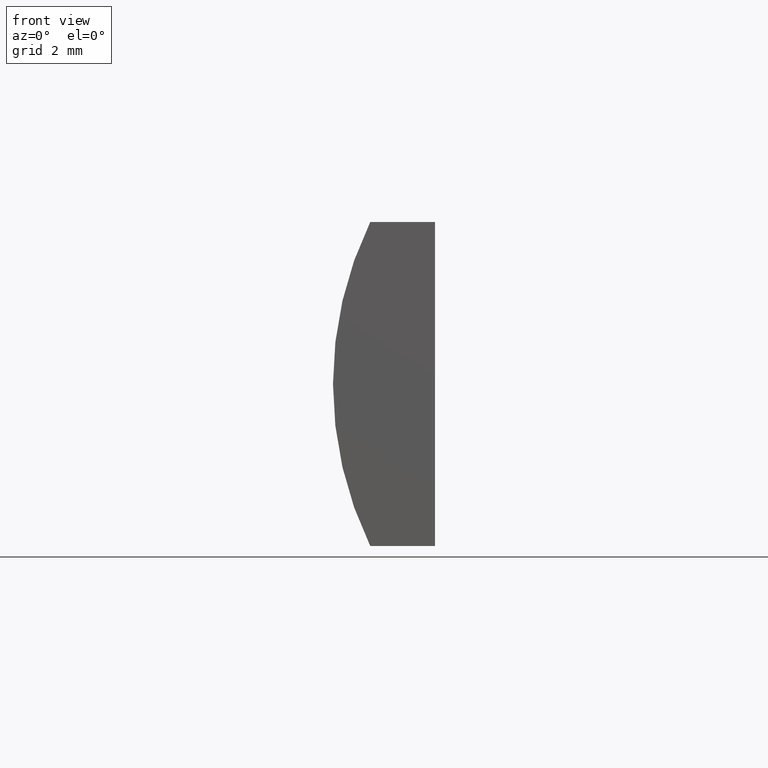
[diagram: clean part render]
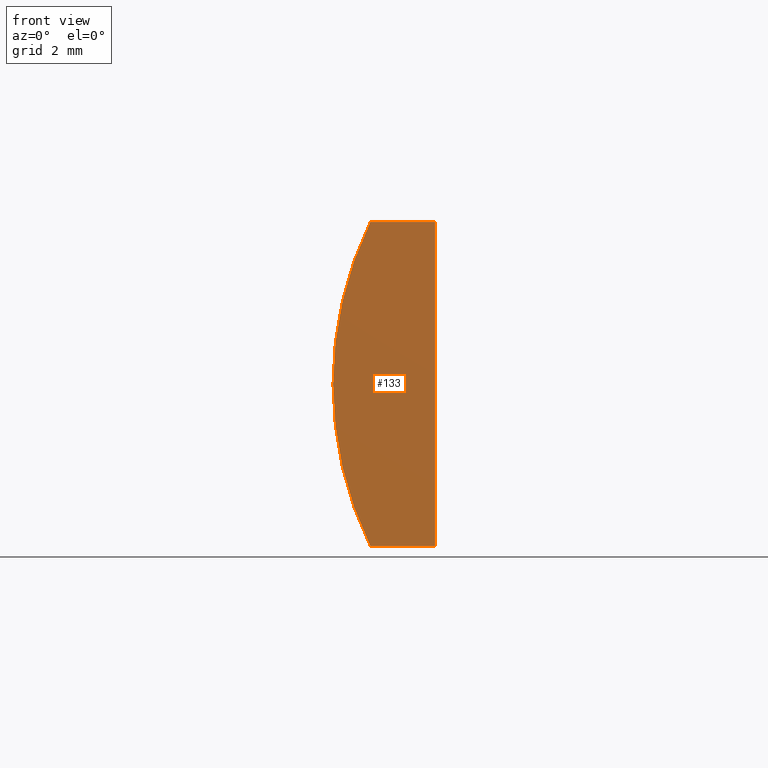
[diagram: same view with one face highlighted and labeled with its STEP entity id]
A machine part, front view. The second image highlights one B-rep face of the part: STEP entity #133.
In plain terms, the highlighted planar face has unit normal (0, 1, 0).
Its self-contained STEP definition (entity closure, byte-faithful):
#14 = CARTESIAN_POINT ( 'NONE',  ( -5.945402443392432600, 0.0000000000000000000, -5.000000000000000000 ) ) ;
#18 = CARTESIAN_POINT ( 'NONE',  ( -5.945402443392432600, 0.0000000000000000000, 5.000000000000000000 ) ) ;
#25 = VERTEX_POINT ( 'NONE', #30 ) ;
#30 = CARTESIAN_POINT ( 'NONE',  ( -3.944795665148738400, 0.0000000000000000000, -5.000000000000000000 ) ) ;
#36 = ORIENTED_EDGE ( 'NONE', *, *, #132, .F. ) ;
#47 = CARTESIAN_POINT ( 'NONE',  ( -5.945402443392432600, 0.0000000000000000000, 5.000000000000000000 ) ) ;
#50 = EDGE_CURVE ( 'NONE', #136, #25, #83, .T. ) ;
#58 = ORIENTED_EDGE ( 'NONE', *, *, #50, .F. ) ;
#65 = LINE ( 'NONE', #14, #114 ) ;
#67 = DIRECTION ( 'NONE',  ( 0.0000000000000000000, 0.0000000000000000000, 1.000000000000000000 ) ) ;
#80 = VERTEX_POINT ( 'NONE', #148 ) ;
#82 = CARTESIAN_POINT ( 'NONE',  ( -3.944795665148738400, 0.0000000000000000000, -5.000000000000000000 ) ) ;
#83 = LINE ( 'NONE', #82, #182 ) ;
#84 = DIRECTION ( 'NONE',  ( 0.0000000000000000000, -0.0000000000000000000, 1.000000000000000000 ) ) ;
#87 = EDGE_LOOP ( 'NONE', ( #36, #152, #58, #158 ) ) ;
#88 = CARTESIAN_POINT ( 'NONE',  ( 4.355204334851265500, 0.0000000000000000000, 4.286263797015675000E-017 ) ) ;
#109 = DIRECTION ( 'NONE',  ( -1.000000000000000000, -0.0000000000000000000, -0.0000000000000000000 ) ) ;
#113 = CARTESIAN_POINT ( 'NONE',  ( -3.944795665148734800, 0.0000000000000000000, 5.000000000000000000 ) ) ;
#114 = VECTOR ( 'NONE', #109, 1000.000000000000000 ) ;
#118 = CARTESIAN_POINT ( 'NONE',  ( 4.355204334851265500, 0.0000000000000000000, 4.286263797015675000E-017 ) ) ;
#123 = VECTOR ( 'NONE', #202, 1000.000000000000000 ) ;
#132 = EDGE_CURVE ( 'NONE', #80, #141, #161, .T. ) ;
#133 = ADVANCED_FACE ( 'NONE', ( #180 ), #134, .F. ) ;
#134 = PLANE ( 'NONE',  #149 ) ;
#136 = VERTEX_POINT ( 'NONE', #113 ) ;
#139 = AXIS2_PLACEMENT_3D ( 'NONE', #88, #168, #67 ) ;
#141 = VERTEX_POINT ( 'NONE', #47 ) ;
#143 = EDGE_CURVE ( 'NONE', #141, #136, #156, .T. ) ;
#148 = CARTESIAN_POINT ( 'NONE',  ( -5.945402443392432600, 0.0000000000000000000, -5.000000000000000000 ) ) ;
#149 = AXIS2_PLACEMENT_3D ( 'NONE', #118, #191, #84 ) ;
#152 = ORIENTED_EDGE ( 'NONE', *, *, #188, .F. ) ;
#156 = LINE ( 'NONE', #18, #123 ) ;
#158 = ORIENTED_EDGE ( 'NONE', *, *, #143, .F. ) ;
#161 = CIRCLE ( 'NONE', #139, 11.45000000000000100 ) ;
#162 = DIRECTION ( 'NONE',  ( -3.469446951953614200E-016, -0.0000000000000000000, -1.000000000000000000 ) ) ;
#168 = DIRECTION ( 'NONE',  ( 0.0000000000000000000, 1.000000000000000000, 0.0000000000000000000 ) ) ;
#180 = FACE_OUTER_BOUND ( 'NONE', #87, .T. ) ;
#182 = VECTOR ( 'NONE', #162, 1000.000000000000000 ) ;
#188 = EDGE_CURVE ( 'NONE', #25, #80, #65, .T. ) ;
#191 = DIRECTION ( 'NONE',  ( 0.0000000000000000000, 1.000000000000000000, 0.0000000000000000000 ) ) ;
#202 = DIRECTION ( 'NONE',  ( 1.000000000000000000, 0.0000000000000000000, 0.0000000000000000000 ) ) ;